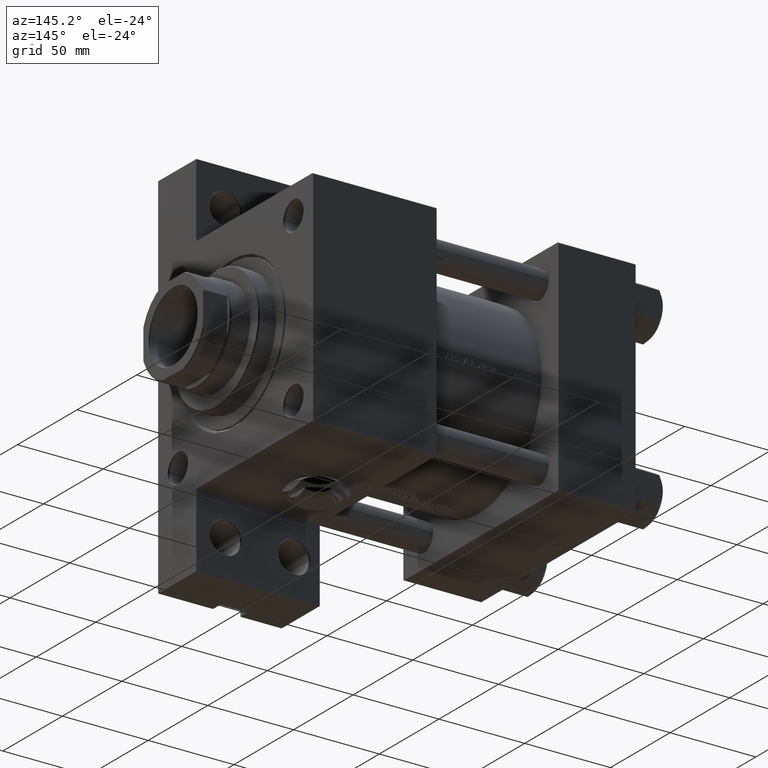
[diagram: clean part render]
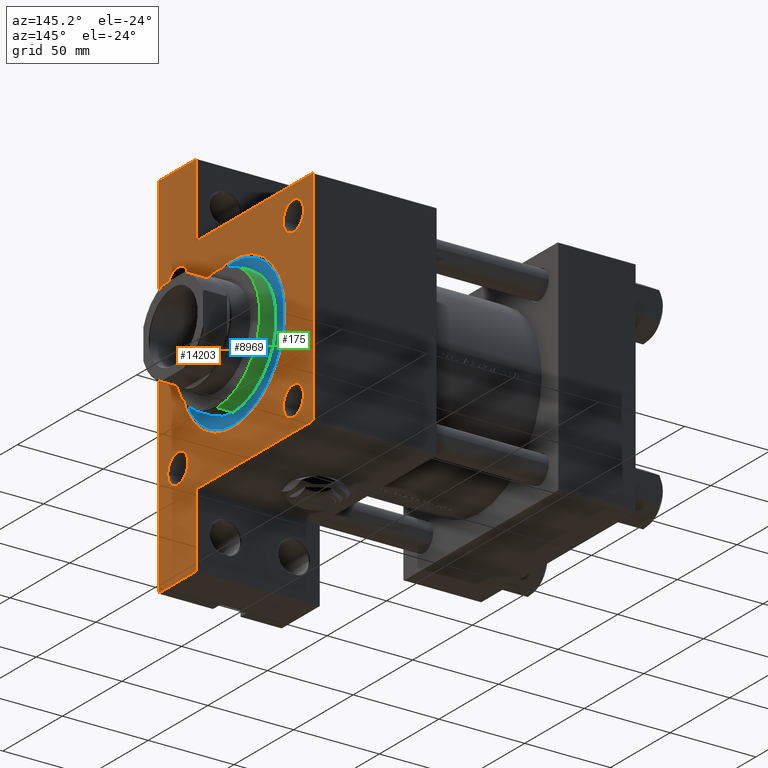
[diagram: same view with three faces highlighted in distinct colors, each labeled with its STEP entity id]
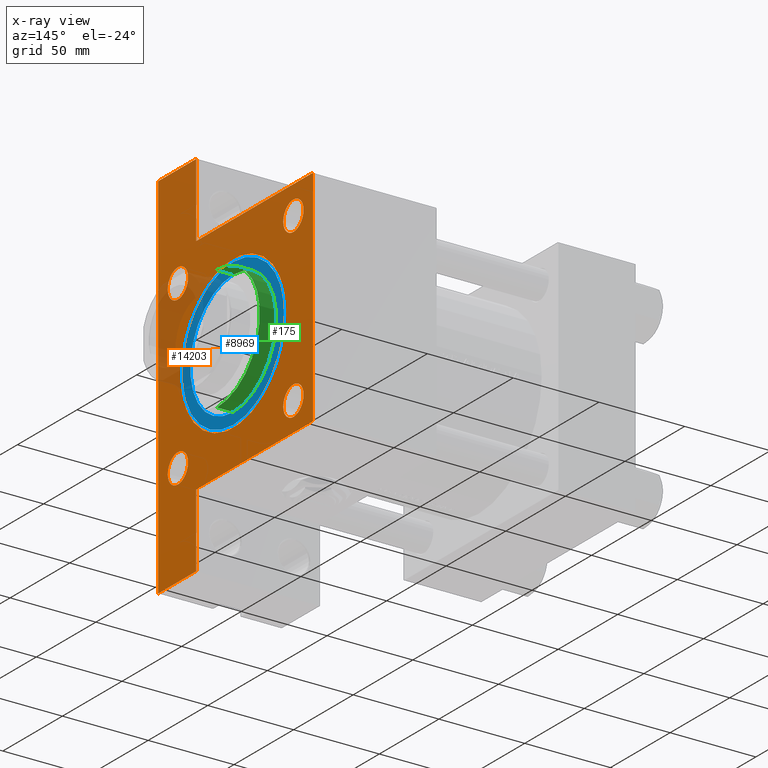
[diagram: x-ray of the same camera — body ghosted, the three highlighted faces saturated]
A machine part, auxiliary view with three faces highlighted in distinct colors.
The next image is the same camera in x-ray (body ghosted, the three faces saturated) — at least one of them is partly hidden behind the body in this view.
Their STEP definitions:

[orange] entity #14203 — the highlighted planar face has unit normal (-1, 0, -0).
#204 = CARTESIAN_POINT ( 'NONE',  ( 188.0000000000000000, -48.45000000000001705, -48.45000000000001705 ) ) ;
#216 = CARTESIAN_POINT ( 'NONE',  ( 188.0000000000000000, 65.00000000000002842, 65.00000000000001421 ) ) ;
#529 = EDGE_CURVE ( 'NONE', #49194, #41421, #31173, .T. ) ;
#540 = VECTOR ( 'NONE', #17140, 1000.000000000000000 ) ;
#634 = ORIENTED_EDGE ( 'NONE', *, *, #29020, .T. ) ;
#710 = EDGE_CURVE ( 'NONE', #32148, #33712, #46414, .T. ) ;
#1328 = VECTOR ( 'NONE', #23071, 1000.000000000000000 ) ;
#1331 = AXIS2_PLACEMENT_3D ( 'NONE', #6501, #14314, #29718 ) ;
#1790 = VERTEX_POINT ( 'NONE', #21549 ) ;
#2527 = VERTEX_POINT ( 'NONE', #47605 ) ;
#2678 = EDGE_CURVE ( 'NONE', #41421, #49194, #44834, .T. ) ;
#2915 = ORIENTED_EDGE ( 'NONE', *, *, #34771, .T. ) ;
#3075 = CARTESIAN_POINT ( 'NONE',  ( 188.0000000000000000, 0.000000000000000000, 0.000000000000000000 ) ) ;
#3562 = DIRECTION ( 'NONE',  ( 0.000000000000000000, 0.000000000000000000, 1.000000000000000000 ) ) ;
#3788 = EDGE_CURVE ( 'NONE', #18901, #37082, #19042, .T. ) ;
#4116 = ORIENTED_EDGE ( 'NONE', *, *, #710, .T. ) ;
#4251 = DIRECTION ( 'NONE',  ( -1.000000000000000000, 0.000000000000000000, -0.000000000000000000 ) ) ;
#4269 = EDGE_LOOP ( 'NONE', ( #37197, #35749 ) ) ;
#4379 = EDGE_CURVE ( 'NONE', #11941, #33279, #8553, .T. ) ;
#4508 = LINE ( 'NONE', #216, #34793 ) ;
#4601 = CARTESIAN_POINT ( 'NONE',  ( 188.0000000000000000, 0.000000000000000000, -1.999999999999988010 ) ) ;
#4701 = DIRECTION ( 'NONE',  ( 0.000000000000000000, 0.000000000000000000, 1.000000000000000000 ) ) ;
#4923 = CARTESIAN_POINT ( 'NONE',  ( 188.0000000000000000, -48.44999999999998153, 56.94999999999991047 ) ) ;
#5581 = EDGE_CURVE ( 'NONE', #33712, #11941, #27488, .T. ) ;
#6501 = CARTESIAN_POINT ( 'NONE',  ( 188.0000000000000000, 48.45000000000000995, -48.45000000000001705 ) ) ;
#6593 = ORIENTED_EDGE ( 'NONE', *, *, #4379, .T. ) ;
#6695 = ORIENTED_EDGE ( 'NONE', *, *, #25320, .T. ) ;
#6860 = CARTESIAN_POINT ( 'NONE',  ( 188.0000000000000000, 65.00000000000002842, -64.99999999999998579 ) ) ;
#7349 = VERTEX_POINT ( 'NONE', #25817 ) ;
#7715 = CARTESIAN_POINT ( 'NONE',  ( 188.0000000000000000, -64.50000000000002842, 65.00000000000000000 ) ) ;
#7809 = DIRECTION ( 'NONE',  ( 0.000000000000000000, -1.000000000000000000, -1.067522139062650425E-16 ) ) ;
#8196 = AXIS2_PLACEMENT_3D ( 'NONE', #3075, #33880, #48807 ) ;
#8233 = CARTESIAN_POINT ( 'NONE',  ( 187.9999999999999432, -107.9999999999999716, -65.00000000000000000 ) ) ;
#8324 = CARTESIAN_POINT ( 'NONE',  ( 188.0000000000000000, -64.99999999999998579, 65.00000000000000000 ) ) ;
#8553 = LINE ( 'NONE', #12579, #20713 ) ;
#9388 = ORIENTED_EDGE ( 'NONE', *, *, #5581, .T. ) ;
#10213 = CARTESIAN_POINT ( 'NONE',  ( 188.0000000000000000, -64.99999999999998579, 64.50000000000002842 ) ) ;
#10365 = EDGE_LOOP ( 'NONE', ( #37663, #10949 ) ) ;
#10462 = CIRCLE ( 'NONE', #36266, 44.24999999999990052 ) ;
#10670 = FACE_OUTER_BOUND ( 'NONE', #27018, .T. ) ;
#10676 = CARTESIAN_POINT ( 'NONE',  ( 188.0000000000000000, 65.00000000000002842, 65.00000000000001421 ) ) ;
#10707 = CARTESIAN_POINT ( 'NONE',  ( 188.0000000000000000, -48.44999999999998153, 48.44999999999998863 ) ) ;
#10949 = ORIENTED_EDGE ( 'NONE', *, *, #32514, .T. ) ;
#10956 = CARTESIAN_POINT ( 'NONE',  ( 188.0000000000000000, 48.45000000000000995, -48.45000000000001705 ) ) ;
#11164 = CIRCLE ( 'NONE', #33694, 8.499999999999923617 ) ;
#11177 = PLANE ( 'NONE',  #8196 ) ;
#11458 = VECTOR ( 'NONE', #29564, 1000.000000000000000 ) ;
#11941 = VERTEX_POINT ( 'NONE', #15679 ) ;
#12265 = CARTESIAN_POINT ( 'NONE',  ( 188.0000000000000000, -48.45000000000001705, -48.45000000000001705 ) ) ;
#12579 = CARTESIAN_POINT ( 'NONE',  ( 187.9999999999999432, -107.9999999999999716, -33.00000000000000000 ) ) ;
#12635 = DIRECTION ( 'NONE',  ( 0.000000000000000000, 0.000000000000000000, 1.000000000000000000 ) ) ;
#12725 = CARTESIAN_POINT ( 'NONE',  ( 188.0000000000000000, 64.50000000000002842, 65.00000000000001421 ) ) ;
#12776 = CARTESIAN_POINT ( 'NONE',  ( 188.0000000000000000, 48.45000000000000995, 48.45000000000001705 ) ) ;
#13202 = CARTESIAN_POINT ( 'NONE',  ( 187.9999999999999432, -107.9999999999999716, -33.00000000000000000 ) ) ;
#14160 = LINE ( 'NONE', #6860, #11458 ) ;
#14203 = ADVANCED_FACE ( 'NONE', ( #41485, #25552, #45780, #14442, #21775, #10670 ), #11177, .F. ) ;
#14314 = DIRECTION ( 'NONE',  ( -1.000000000000000000, 0.000000000000000000, -0.000000000000000000 ) ) ;
#14442 = FACE_BOUND ( 'NONE', #17713, .T. ) ;
#14741 = DIRECTION ( 'NONE',  ( -1.000000000000000000, 0.000000000000000000, -0.000000000000000000 ) ) ;
#14791 = VECTOR ( 'NONE', #18235, 1000.000000000000000 ) ;
#14819 = VERTEX_POINT ( 'NONE', #22156 ) ;
#15679 = CARTESIAN_POINT ( 'NONE',  ( 188.0000000000000000, -64.99999999999998579, -33.00000000000000000 ) ) ;
#15927 = DIRECTION ( 'NONE',  ( -1.000000000000000000, 0.000000000000000000, -0.000000000000000000 ) ) ;
#15966 = DIRECTION ( 'NONE',  ( -1.000000000000000000, 0.000000000000000000, -0.000000000000000000 ) ) ;
#16163 = CARTESIAN_POINT ( 'NONE',  ( 188.0000000000000000, 65.00000000000002842, 64.50000000000001421 ) ) ;
#16230 = ORIENTED_EDGE ( 'NONE', *, *, #28121, .F. ) ;
#16287 = EDGE_CURVE ( 'NONE', #20999, #43036, #21304, .T. ) ;
#16578 = DIRECTION ( 'NONE',  ( -1.000000000000000000, 0.000000000000000000, -0.000000000000000000 ) ) ;
#17076 = CARTESIAN_POINT ( 'NONE',  ( 188.0000000000000000, 48.45000000000000995, 48.45000000000001705 ) ) ;
#17140 = DIRECTION ( 'NONE',  ( 0.000000000000000000, 0.000000000000000000, -1.000000000000000000 ) ) ;
#17713 = EDGE_LOOP ( 'NONE', ( #38461, #18739 ) ) ;
#17906 = CIRCLE ( 'NONE', #45362, 8.499999999999923617 ) ;
#18235 = DIRECTION ( 'NONE',  ( 0.000000000000000000, 0.000000000000000000, -1.000000000000000000 ) ) ;
#18353 = EDGE_CURVE ( 'NONE', #2527, #21681, #30198, .T. ) ;
#18687 = CIRCLE ( 'NONE', #49345, 8.499999999999923617 ) ;
#18715 = DIRECTION ( 'NONE',  ( -1.000000000000000000, 0.000000000000000000, -0.000000000000000000 ) ) ;
#18739 = ORIENTED_EDGE ( 'NONE', *, *, #2678, .T. ) ;
#18901 = VERTEX_POINT ( 'NONE', #26167 ) ;
#18927 = ORIENTED_EDGE ( 'NONE', *, *, #32053, .T. ) ;
#19042 = LINE ( 'NONE', #38986, #1328 ) ;
#19953 = VERTEX_POINT ( 'NONE', #23291 ) ;
#19966 = VECTOR ( 'NONE', #47692, 1000.000000000000000 ) ;
#20347 = LINE ( 'NONE', #20831, #32444 ) ;
#20713 = VECTOR ( 'NONE', #31016, 1000.000000000000000 ) ;
#20831 = CARTESIAN_POINT ( 'NONE',  ( 187.9999999999999716, 107.9999999999999716, -33.00000000000000000 ) ) ;
#20999 = VERTEX_POINT ( 'NONE', #16163 ) ;
#21304 = LINE ( 'NONE', #32893, #29326 ) ;
#21549 = CARTESIAN_POINT ( 'NONE',  ( 187.9999999999999716, 64.99999999999998579, -33.00000000000000000 ) ) ;
#21681 = VERTEX_POINT ( 'NONE', #4923 ) ;
#21745 = CARTESIAN_POINT ( 'NONE',  ( 188.0000000000000000, 0.000000000000000000, -1.999999999999988010 ) ) ;
#21775 = FACE_BOUND ( 'NONE', #10365, .T. ) ;
#22156 = CARTESIAN_POINT ( 'NONE',  ( 188.0000000000000000, 0.000000000000000000, -46.24999999999988631 ) ) ;
#22277 = AXIS2_PLACEMENT_3D ( 'NONE', #10956, #23310, #30136 ) ;
#22662 = DIRECTION ( 'NONE',  ( -0.000000000000000000, -0.7071067811865376918, -0.7071067811865574537 ) ) ;
#22841 = EDGE_CURVE ( 'NONE', #43036, #32148, #4508, .T. ) ;
#23071 = DIRECTION ( 'NONE',  ( 0.000000000000000000, 0.000000000000000000, -1.000000000000000000 ) ) ;
#23146 = CARTESIAN_POINT ( 'NONE',  ( 188.0000000000000000, -48.45000000000001705, -56.94999999999993889 ) ) ;
#23291 = CARTESIAN_POINT ( 'NONE',  ( 188.0000000000000000, 48.45000000000000995, 39.95000000000008811 ) ) ;
#23304 = CIRCLE ( 'NONE', #46720, 8.499999999999923617 ) ;
#23310 = DIRECTION ( 'NONE',  ( -1.000000000000000000, 0.000000000000000000, -0.000000000000000000 ) ) ;
#23428 = CARTESIAN_POINT ( 'NONE',  ( 188.0000000000000000, 48.45000000000000995, -56.94999999999993889 ) ) ;
#23625 = DIRECTION ( 'NONE',  ( 0.000000000000000000, 0.000000000000000000, 1.000000000000000000 ) ) ;
#23977 = VERTEX_POINT ( 'NONE', #23146 ) ;
#24289 = DIRECTION ( 'NONE',  ( 0.000000000000000000, 0.000000000000000000, 1.000000000000000000 ) ) ;
#25320 = EDGE_CURVE ( 'NONE', #18901, #1790, #20347, .T. ) ;
#25329 = DIRECTION ( 'NONE',  ( 0.000000000000000000, -0.7071067811865474617, 0.7071067811865474617 ) ) ;
#25552 = FACE_BOUND ( 'NONE', #4269, .T. ) ;
#25810 = CARTESIAN_POINT ( 'NONE',  ( 188.0000000000000000, 5.419062086227025573E-15, 42.24999999999991473 ) ) ;
#25817 = CARTESIAN_POINT ( 'NONE',  ( 188.0000000000000000, -48.45000000000001705, -39.95000000000008811 ) ) ;
#26167 = CARTESIAN_POINT ( 'NONE',  ( 187.9999999999999716, 107.9999999999999716, -33.00000000000000000 ) ) ;
#26711 = CIRCLE ( 'NONE', #37201, 8.499999999999923617 ) ;
#27018 = EDGE_LOOP ( 'NONE', ( #16230, #43203, #33928, #4116, #9388, #6593, #18927, #34912, #38499, #6695 ) ) ;
#27488 = LINE ( 'NONE', #8324, #19966 ) ;
#28121 = EDGE_CURVE ( 'NONE', #20999, #1790, #30357, .T. ) ;
#29020 = EDGE_CURVE ( 'NONE', #19953, #42144, #17906, .T. ) ;
#29326 = VECTOR ( 'NONE', #25329, 1000.000000000000114 ) ;
#29564 = DIRECTION ( 'NONE',  ( 0.000000000000000000, -1.000000000000000000, -2.135044278125300850E-16 ) ) ;
#29718 = DIRECTION ( 'NONE',  ( 0.000000000000000000, 0.000000000000000000, 1.000000000000000000 ) ) ;
#29747 = CARTESIAN_POINT ( 'NONE',  ( 187.9999999999999716, 107.9999999999999716, -65.00000000000000000 ) ) ;
#30136 = DIRECTION ( 'NONE',  ( 0.000000000000000000, 0.000000000000000000, 1.000000000000000000 ) ) ;
#30198 = CIRCLE ( 'NONE', #36655, 8.499999999999923617 ) ;
#30357 = LINE ( 'NONE', #10676, #14791 ) ;
#31016 = DIRECTION ( 'NONE',  ( -0.000000000000000000, -1.000000000000000000, -0.000000000000000000 ) ) ;
#31173 = CIRCLE ( 'NONE', #1331, 8.499999999999923617 ) ;
#32053 = EDGE_CURVE ( 'NONE', #33279, #45173, #40373, .T. ) ;
#32148 = VERTEX_POINT ( 'NONE', #7715 ) ;
#32217 = DIRECTION ( 'NONE',  ( 0.000000000000000000, 0.000000000000000000, 1.000000000000000000 ) ) ;
#32444 = VECTOR ( 'NONE', #36482, 1000.000000000000000 ) ;
#32514 = EDGE_CURVE ( 'NONE', #40259, #14819, #49796, .T. ) ;
#32893 = CARTESIAN_POINT ( 'NONE',  ( 188.0000000000000000, 64.50000000000002842, 65.00000000000001421 ) ) ;
#33279 = VERTEX_POINT ( 'NONE', #13202 ) ;
#33694 = AXIS2_PLACEMENT_3D ( 'NONE', #46758, #15927, #12635 ) ;
#33712 = VERTEX_POINT ( 'NONE', #10213 ) ;
#33795 = CARTESIAN_POINT ( 'NONE',  ( 188.0000000000000000, 48.45000000000000995, -39.95000000000008811 ) ) ;
#33880 = DIRECTION ( 'NONE',  ( -1.000000000000000000, 0.000000000000000000, -0.000000000000000000 ) ) ;
#33928 = ORIENTED_EDGE ( 'NONE', *, *, #22841, .T. ) ;
#34452 = AXIS2_PLACEMENT_3D ( 'NONE', #4601, #15966, #24289 ) ;
#34771 = EDGE_CURVE ( 'NONE', #42144, #19953, #23304, .T. ) ;
#34793 = VECTOR ( 'NONE', #7809, 1000.000000000000000 ) ;
#34849 = EDGE_LOOP ( 'NONE', ( #35755, #42830 ) ) ;
#34912 = ORIENTED_EDGE ( 'NONE', *, *, #45771, .F. ) ;
#35056 = DIRECTION ( 'NONE',  ( 0.000000000000000000, 0.000000000000000000, 1.000000000000000000 ) ) ;
#35749 = ORIENTED_EDGE ( 'NONE', *, *, #37825, .T. ) ;
#35755 = ORIENTED_EDGE ( 'NONE', *, *, #46157, .T. ) ;
#36266 = AXIS2_PLACEMENT_3D ( 'NONE', #21745, #18715, #3562 ) ;
#36482 = DIRECTION ( 'NONE',  ( 0.000000000000000000, -1.000000000000000000, 0.000000000000000000 ) ) ;
#36655 = AXIS2_PLACEMENT_3D ( 'NONE', #10707, #14741, #49850 ) ;
#36728 = EDGE_CURVE ( 'NONE', #14819, #40259, #10462, .T. ) ;
#37082 = VERTEX_POINT ( 'NONE', #29747 ) ;
#37197 = ORIENTED_EDGE ( 'NONE', *, *, #18353, .T. ) ;
#37201 = AXIS2_PLACEMENT_3D ( 'NONE', #12265, #42823, #23625 ) ;
#37620 = VECTOR ( 'NONE', #22662, 999.9999999999998863 ) ;
#37663 = ORIENTED_EDGE ( 'NONE', *, *, #36728, .T. ) ;
#37825 = EDGE_CURVE ( 'NONE', #21681, #2527, #11164, .T. ) ;
#38461 = ORIENTED_EDGE ( 'NONE', *, *, #529, .T. ) ;
#38499 = ORIENTED_EDGE ( 'NONE', *, *, #3788, .F. ) ;
#38986 = CARTESIAN_POINT ( 'NONE',  ( 187.9999999999999716, 107.9999999999999716, -33.00000000000000000 ) ) ;
#39309 = DIRECTION ( 'NONE',  ( -1.000000000000000000, 0.000000000000000000, -0.000000000000000000 ) ) ;
#40259 = VERTEX_POINT ( 'NONE', #25810 ) ;
#40373 = LINE ( 'NONE', #43920, #540 ) ;
#41421 = VERTEX_POINT ( 'NONE', #33795 ) ;
#41485 = FACE_BOUND ( 'NONE', #48467, .T. ) ;
#42144 = VERTEX_POINT ( 'NONE', #43964 ) ;
#42611 = CARTESIAN_POINT ( 'NONE',  ( 188.0000000000000000, -64.99999999999998579, 64.50000000000002842 ) ) ;
#42823 = DIRECTION ( 'NONE',  ( -1.000000000000000000, 0.000000000000000000, -0.000000000000000000 ) ) ;
#42830 = ORIENTED_EDGE ( 'NONE', *, *, #45191, .T. ) ;
#43036 = VERTEX_POINT ( 'NONE', #12725 ) ;
#43203 = ORIENTED_EDGE ( 'NONE', *, *, #16287, .T. ) ;
#43920 = CARTESIAN_POINT ( 'NONE',  ( 187.9999999999999432, -107.9999999999999716, -33.00000000000000000 ) ) ;
#43964 = CARTESIAN_POINT ( 'NONE',  ( 188.0000000000000000, 48.45000000000000995, 56.94999999999993889 ) ) ;
#44834 = CIRCLE ( 'NONE', #22277, 8.499999999999923617 ) ;
#45173 = VERTEX_POINT ( 'NONE', #8233 ) ;
#45191 = EDGE_CURVE ( 'NONE', #7349, #23977, #26711, .T. ) ;
#45362 = AXIS2_PLACEMENT_3D ( 'NONE', #17076, #16578, #32217 ) ;
#45771 = EDGE_CURVE ( 'NONE', #37082, #45173, #14160, .T. ) ;
#45780 = FACE_BOUND ( 'NONE', #34849, .T. ) ;
#46157 = EDGE_CURVE ( 'NONE', #23977, #7349, #18687, .T. ) ;
#46414 = LINE ( 'NONE', #42611, #37620 ) ;
#46720 = AXIS2_PLACEMENT_3D ( 'NONE', #12776, #39309, #4701 ) ;
#46758 = CARTESIAN_POINT ( 'NONE',  ( 188.0000000000000000, -48.44999999999998153, 48.44999999999998863 ) ) ;
#47605 = CARTESIAN_POINT ( 'NONE',  ( 188.0000000000000000, -48.44999999999998153, 39.95000000000005969 ) ) ;
#47692 = DIRECTION ( 'NONE',  ( 0.000000000000000000, 0.000000000000000000, -1.000000000000000000 ) ) ;
#48467 = EDGE_LOOP ( 'NONE', ( #634, #2915 ) ) ;
#48807 = DIRECTION ( 'NONE',  ( -0.000000000000000000, 0.000000000000000000, 1.000000000000000000 ) ) ;
#49194 = VERTEX_POINT ( 'NONE', #23428 ) ;
#49345 = AXIS2_PLACEMENT_3D ( 'NONE', #204, #4251, #35056 ) ;
#49796 = CIRCLE ( 'NONE', #34452, 44.24999999999990052 ) ;
#49850 = DIRECTION ( 'NONE',  ( 0.000000000000000000, 0.000000000000000000, 1.000000000000000000 ) ) ;

[blue] entity #8969 — the highlighted planar face has unit normal (1, 0, 0).
#391 = CARTESIAN_POINT ( 'NONE',  ( 0.000000000000000000, 0.000000000000000000, 28.69999999999999929 ) ) ;
#1627 = EDGE_LOOP ( 'NONE', ( #8960, #15601 ) ) ;
#1671 = EDGE_LOOP ( 'NONE', ( #12739, #27464 ) ) ;
#2313 = CARTESIAN_POINT ( 'NONE',  ( 0.000000000000000000, 0.000000000000000000, 28.69999999999999929 ) ) ;
#2430 = CIRCLE ( 'NONE', #13717, 42.75000000000000000 ) ;
#4185 = DIRECTION ( 'NONE',  ( 0.000000000000000000, 0.000000000000000000, 1.000000000000000000 ) ) ;
#4266 = AXIS2_PLACEMENT_3D ( 'NONE', #5103, #15967, #46803 ) ;
#5103 = CARTESIAN_POINT ( 'NONE',  ( 0.000000000000000000, 0.000000000000000000, 28.69999999999999929 ) ) ;
#6357 = AXIS2_PLACEMENT_3D ( 'NONE', #21267, #9651, #36421 ) ;
#8960 = ORIENTED_EDGE ( 'NONE', *, *, #49640, .F. ) ;
#8969 = ADVANCED_FACE ( 'NONE', ( #21016, #44751 ), #33113, .T. ) ;
#9651 = DIRECTION ( 'NONE',  ( 0.000000000000000000, 0.000000000000000000, 1.000000000000000000 ) ) ;
#10160 = DIRECTION ( 'NONE',  ( 1.000000000000000000, 0.000000000000000000, 0.000000000000000000 ) ) ;
#11099 = VERTEX_POINT ( 'NONE', #36524 ) ;
#12739 = ORIENTED_EDGE ( 'NONE', *, *, #42438, .T. ) ;
#13717 = AXIS2_PLACEMENT_3D ( 'NONE', #26245, #45458, #38613 ) ;
#15601 = ORIENTED_EDGE ( 'NONE', *, *, #47690, .F. ) ;
#15967 = DIRECTION ( 'NONE',  ( 0.000000000000000000, 0.000000000000000000, 1.000000000000000000 ) ) ;
#16263 = CARTESIAN_POINT ( 'NONE',  ( 36.00000000000000000, 4.408728476930470856E-15, 28.69999999999999929 ) ) ;
#16302 = AXIS2_PLACEMENT_3D ( 'NONE', #391, #4185, #46381 ) ;
#16998 = DIRECTION ( 'NONE',  ( 0.000000000000000000, 0.000000000000000000, 1.000000000000000000 ) ) ;
#21016 = FACE_BOUND ( 'NONE', #1627, .T. ) ;
#21267 = CARTESIAN_POINT ( 'NONE',  ( 0.000000000000000000, 0.000000000000000000, 28.69999999999999929 ) ) ;
#26245 = CARTESIAN_POINT ( 'NONE',  ( 0.000000000000000000, 0.000000000000000000, 28.69999999999999929 ) ) ;
#27118 = CARTESIAN_POINT ( 'NONE',  ( -36.00000000000000000, 0.000000000000000000, 28.69999999999999929 ) ) ;
#27464 = ORIENTED_EDGE ( 'NONE', *, *, #33990, .T. ) ;
#28404 = CIRCLE ( 'NONE', #16302, 36.00000000000000000 ) ;
#30025 = VERTEX_POINT ( 'NONE', #27118 ) ;
#33113 = PLANE ( 'NONE',  #6357 ) ;
#33990 = EDGE_CURVE ( 'NONE', #11099, #38099, #49086, .T. ) ;
#34909 = CIRCLE ( 'NONE', #4266, 36.00000000000000000 ) ;
#36421 = DIRECTION ( 'NONE',  ( 1.000000000000000000, 0.000000000000000000, -0.000000000000000000 ) ) ;
#36524 = CARTESIAN_POINT ( 'NONE',  ( 42.75000000000000000, 5.235365066354935472E-15, 28.69999999999999929 ) ) ;
#38099 = VERTEX_POINT ( 'NONE', #46194 ) ;
#38613 = DIRECTION ( 'NONE',  ( 1.000000000000000000, 0.000000000000000000, 0.000000000000000000 ) ) ;
#40202 = VERTEX_POINT ( 'NONE', #16263 ) ;
#42438 = EDGE_CURVE ( 'NONE', #38099, #11099, #2430, .T. ) ;
#42635 = AXIS2_PLACEMENT_3D ( 'NONE', #2313, #16998, #10160 ) ;
#44751 = FACE_OUTER_BOUND ( 'NONE', #1671, .T. ) ;
#45458 = DIRECTION ( 'NONE',  ( 0.000000000000000000, 0.000000000000000000, 1.000000000000000000 ) ) ;
#46194 = CARTESIAN_POINT ( 'NONE',  ( -42.75000000000000000, 0.000000000000000000, 28.69999999999999929 ) ) ;
#46381 = DIRECTION ( 'NONE',  ( 1.000000000000000000, 0.000000000000000000, 0.000000000000000000 ) ) ;
#46803 = DIRECTION ( 'NONE',  ( 1.000000000000000000, 0.000000000000000000, 0.000000000000000000 ) ) ;
#47690 = EDGE_CURVE ( 'NONE', #40202, #30025, #34909, .T. ) ;
#49086 = CIRCLE ( 'NONE', #42635, 42.75000000000000000 ) ;
#49640 = EDGE_CURVE ( 'NONE', #30025, #40202, #28404, .T. ) ;

[green] entity #175 — the highlighted cylindrical surface (partial cylindrical patch) has radius 36 mm, axis along (-1, 0, 0).
#175 = ADVANCED_FACE ( 'NONE', ( #32337 ), #40187, .T. ) ;
#391 = CARTESIAN_POINT ( 'NONE',  ( 0.000000000000000000, 0.000000000000000000, 28.69999999999999929 ) ) ;
#2551 = VERTEX_POINT ( 'NONE', #39526 ) ;
#3584 = DIRECTION ( 'NONE',  ( -0.000000000000000000, -0.000000000000000000, -1.000000000000000000 ) ) ;
#3860 = VERTEX_POINT ( 'NONE', #47074 ) ;
#4185 = DIRECTION ( 'NONE',  ( 0.000000000000000000, 0.000000000000000000, 1.000000000000000000 ) ) ;
#7046 = DIRECTION ( 'NONE',  ( -0.000000000000000000, -0.000000000000000000, -1.000000000000000000 ) ) ;
#9279 = ORIENTED_EDGE ( 'NONE', *, *, #18589, .F. ) ;
#9832 = CARTESIAN_POINT ( 'NONE',  ( 36.00000000000000000, 4.408728476930470856E-15, 38.69999999999999574 ) ) ;
#10105 = EDGE_CURVE ( 'NONE', #2551, #30025, #45265, .T. ) ;
#14291 = ORIENTED_EDGE ( 'NONE', *, *, #10105, .T. ) ;
#16263 = CARTESIAN_POINT ( 'NONE',  ( 36.00000000000000000, 4.408728476930470856E-15, 28.69999999999999929 ) ) ;
#16302 = AXIS2_PLACEMENT_3D ( 'NONE', #391, #4185, #46381 ) ;
#18183 = CARTESIAN_POINT ( 'NONE',  ( 0.000000000000000000, 0.000000000000000000, 38.19999999999998863 ) ) ;
#18589 = EDGE_CURVE ( 'NONE', #3860, #40202, #33296, .T. ) ;
#21751 = VECTOR ( 'NONE', #3584, 1000.000000000000000 ) ;
#24276 = CARTESIAN_POINT ( 'NONE',  ( 0.000000000000000000, 0.000000000000000000, 38.69999999999999574 ) ) ;
#27118 = CARTESIAN_POINT ( 'NONE',  ( -36.00000000000000000, 0.000000000000000000, 28.69999999999999929 ) ) ;
#27256 = AXIS2_PLACEMENT_3D ( 'NONE', #18183, #33344, #33089 ) ;
#28404 = CIRCLE ( 'NONE', #16302, 36.00000000000000000 ) ;
#30025 = VERTEX_POINT ( 'NONE', #27118 ) ;
#32337 = FACE_OUTER_BOUND ( 'NONE', #49028, .T. ) ;
#32641 = EDGE_CURVE ( 'NONE', #3860, #2551, #40969, .T. ) ;
#33089 = DIRECTION ( 'NONE',  ( 1.000000000000000000, 0.000000000000000000, 0.000000000000000000 ) ) ;
#33296 = LINE ( 'NONE', #9832, #48777 ) ;
#33344 = DIRECTION ( 'NONE',  ( 0.000000000000000000, 0.000000000000000000, -1.000000000000000000 ) ) ;
#33873 = CARTESIAN_POINT ( 'NONE',  ( -36.00000000000000000, 0.000000000000000000, 38.69999999999999574 ) ) ;
#34156 = ORIENTED_EDGE ( 'NONE', *, *, #32641, .T. ) ;
#39259 = AXIS2_PLACEMENT_3D ( 'NONE', #24276, #39943, #39695 ) ;
#39452 = ORIENTED_EDGE ( 'NONE', *, *, #49640, .T. ) ;
#39526 = CARTESIAN_POINT ( 'NONE',  ( -36.00000000000000000, 0.000000000000000000, 38.19999999999998863 ) ) ;
#39695 = DIRECTION ( 'NONE',  ( -1.000000000000000000, 0.000000000000000000, 0.000000000000000000 ) ) ;
#39943 = DIRECTION ( 'NONE',  ( -0.000000000000000000, -0.000000000000000000, -1.000000000000000000 ) ) ;
#40187 = CYLINDRICAL_SURFACE ( 'NONE', #39259, 36.00000000000000000 ) ;
#40202 = VERTEX_POINT ( 'NONE', #16263 ) ;
#40969 = CIRCLE ( 'NONE', #27256, 36.00000000000000000 ) ;
#45265 = LINE ( 'NONE', #33873, #21751 ) ;
#46381 = DIRECTION ( 'NONE',  ( 1.000000000000000000, 0.000000000000000000, 0.000000000000000000 ) ) ;
#47074 = CARTESIAN_POINT ( 'NONE',  ( 36.00000000000000000, 4.408728476930470856E-15, 38.19999999999998863 ) ) ;
#48777 = VECTOR ( 'NONE', #7046, 1000.000000000000000 ) ;
#49028 = EDGE_LOOP ( 'NONE', ( #9279, #34156, #14291, #39452 ) ) ;
#49640 = EDGE_CURVE ( 'NONE', #30025, #40202, #28404, .T. ) ;